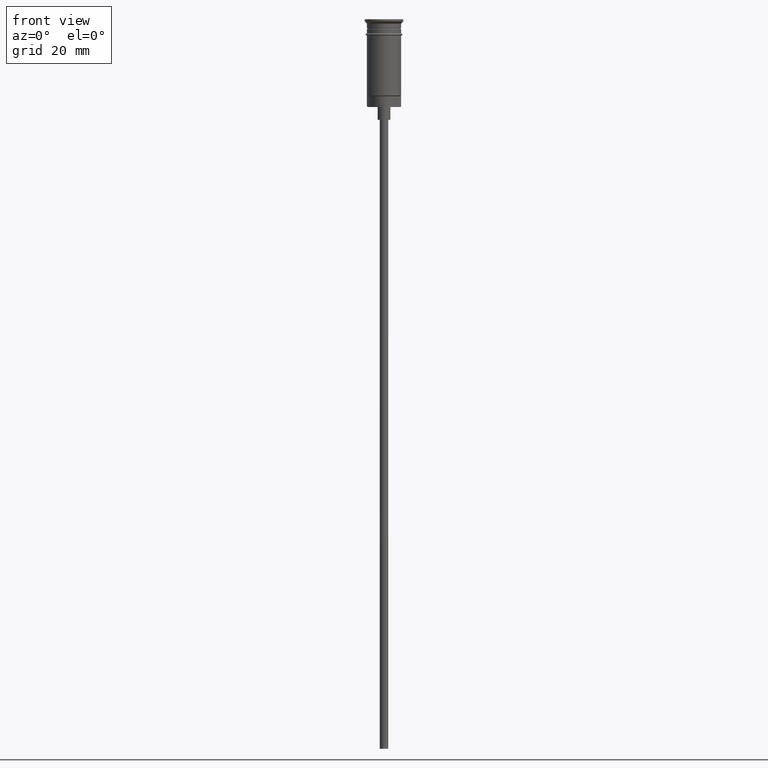
[diagram: clean part render]
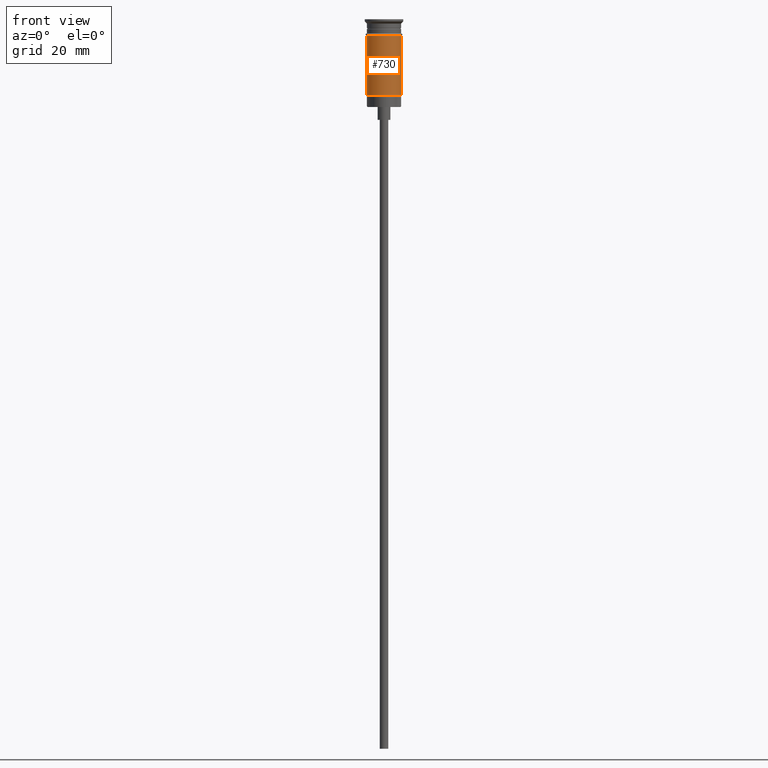
[diagram: same view with one face highlighted and labeled with its STEP entity id]
A machine part, front view. The second image highlights one B-rep face of the part: STEP entity #730.
In plain terms, the highlighted cylindrical surface (edge-blend (fillet) strip) has radius 4 mm, axis along (-0, -0, 1).
Its self-contained STEP definition (entity closure, byte-faithful):
#76 = LINE ( 'NONE', #1069, #79 ) ;
#79 = VECTOR ( 'NONE', #1300, 1000.000000000000000 ) ;
#80 = VERTEX_POINT ( 'NONE', #1104 ) ;
#129 = CARTESIAN_POINT ( 'NONE',  ( 0.000000000000000000, 0.000000000000000000, -3.799999999999998490 ) ) ;
#163 = AXIS2_PLACEMENT_3D ( 'NONE', #1093, #243, #1088 ) ;
#180 = EDGE_CURVE ( 'NONE', #713, #80, #215, .T. ) ;
#215 = CIRCLE ( 'NONE', #1113, 4.000000000000000000 ) ;
#221 = CIRCLE ( 'NONE', #1116, 4.000000000000000000 ) ;
#224 = CYLINDRICAL_SURFACE ( 'NONE', #163, 4.000000000000000000 ) ;
#225 = ORIENTED_EDGE ( 'NONE', *, *, #473, .F. ) ;
#228 = VERTEX_POINT ( 'NONE', #369 ) ;
#243 = DIRECTION ( 'NONE',  ( -0.000000000000000000, -0.000000000000000000, 1.000000000000000000 ) ) ;
#369 = CARTESIAN_POINT ( 'NONE',  ( 4.000000000000000000, 0.000000000000000000, -3.799999999999998490 ) ) ;
#473 = EDGE_CURVE ( 'NONE', #713, #1207, #1025, .T. ) ;
#518 = EDGE_CURVE ( 'NONE', #80, #228, #76, .T. ) ;
#538 = VECTOR ( 'NONE', #1383, 1000.000000000000000 ) ;
#625 = DIRECTION ( 'NONE',  ( -1.000000000000000000, 0.000000000000000000, 0.000000000000000000 ) ) ;
#643 = DIRECTION ( 'NONE',  ( -0.000000000000000000, -0.000000000000000000, 1.000000000000000000 ) ) ;
#713 = VERTEX_POINT ( 'NONE', #975 ) ;
#728 = CARTESIAN_POINT ( 'NONE',  ( -4.000000000000000000, 4.898587196589412829E-16, -3.799999999999998490 ) ) ;
#730 = ADVANCED_FACE ( 'NONE', ( #863 ), #224, .T. ) ;
#753 = ORIENTED_EDGE ( 'NONE', *, *, #518, .T. ) ;
#863 = FACE_OUTER_BOUND ( 'NONE', #1333, .T. ) ;
#975 = CARTESIAN_POINT ( 'NONE',  ( -3.999999999999997335, 0.000000000000000000, -17.79999999999998295 ) ) ;
#987 = CARTESIAN_POINT ( 'NONE',  ( 0.000000000000000000, 0.000000000000000000, -17.79999999999998295 ) ) ;
#1019 = DIRECTION ( 'NONE',  ( 1.000000000000000000, 0.000000000000000000, 0.000000000000000000 ) ) ;
#1025 = LINE ( 'NONE', #1503, #538 ) ;
#1069 = CARTESIAN_POINT ( 'NONE',  ( 4.000000000000000000, 0.000000000000000000, 0.000000000000000000 ) ) ;
#1088 = DIRECTION ( 'NONE',  ( 1.000000000000000000, 0.000000000000000000, 0.000000000000000000 ) ) ;
#1093 = CARTESIAN_POINT ( 'NONE',  ( 0.000000000000000000, 0.000000000000000000, 0.000000000000000000 ) ) ;
#1094 = ORIENTED_EDGE ( 'NONE', *, *, #1283, .F. ) ;
#1104 = CARTESIAN_POINT ( 'NONE',  ( 4.000000000000000000, 4.898587196589412829E-16, -17.79999999999998295 ) ) ;
#1113 = AXIS2_PLACEMENT_3D ( 'NONE', #987, #643, #625 ) ;
#1116 = AXIS2_PLACEMENT_3D ( 'NONE', #129, #1241, #1019 ) ;
#1207 = VERTEX_POINT ( 'NONE', #728 ) ;
#1241 = DIRECTION ( 'NONE',  ( -0.000000000000000000, -0.000000000000000000, 1.000000000000000000 ) ) ;
#1283 = EDGE_CURVE ( 'NONE', #1207, #228, #221, .T. ) ;
#1300 = DIRECTION ( 'NONE',  ( -0.000000000000000000, -0.000000000000000000, 1.000000000000000000 ) ) ;
#1333 = EDGE_LOOP ( 'NONE', ( #225, #1581, #753, #1094 ) ) ;
#1383 = DIRECTION ( 'NONE',  ( -0.000000000000000000, -0.000000000000000000, 1.000000000000000000 ) ) ;
#1503 = CARTESIAN_POINT ( 'NONE',  ( -4.000000000000000000, 4.898587196589412829E-16, 0.000000000000000000 ) ) ;
#1581 = ORIENTED_EDGE ( 'NONE', *, *, #180, .T. ) ;